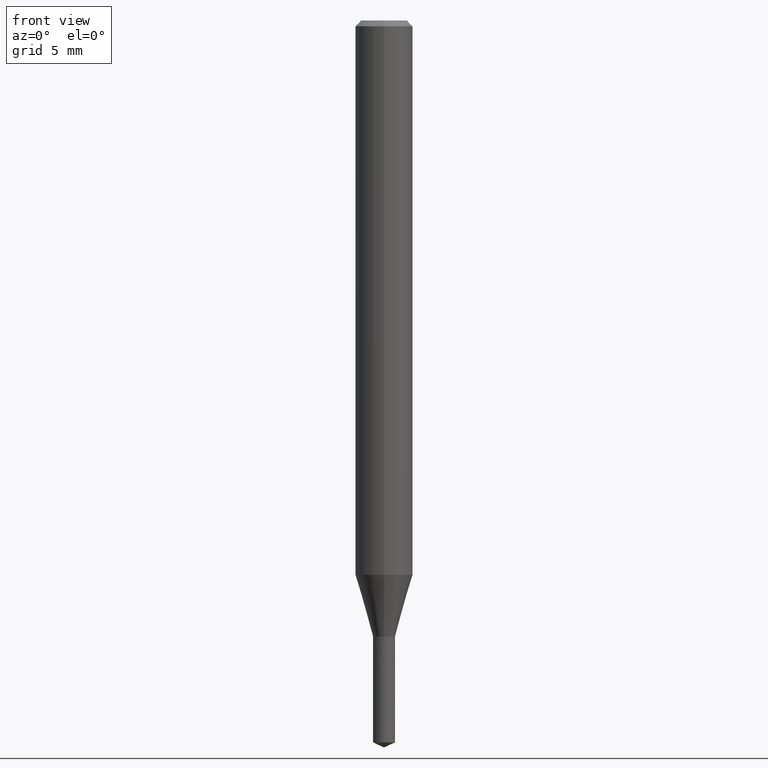
[diagram: clean part render]
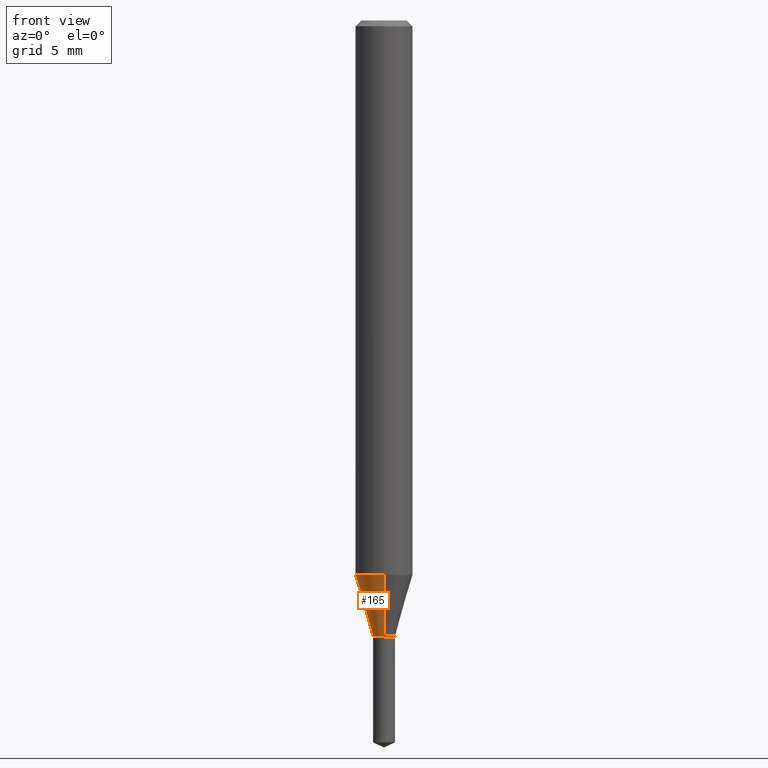
[diagram: same view with one face highlighted and labeled with its STEP entity id]
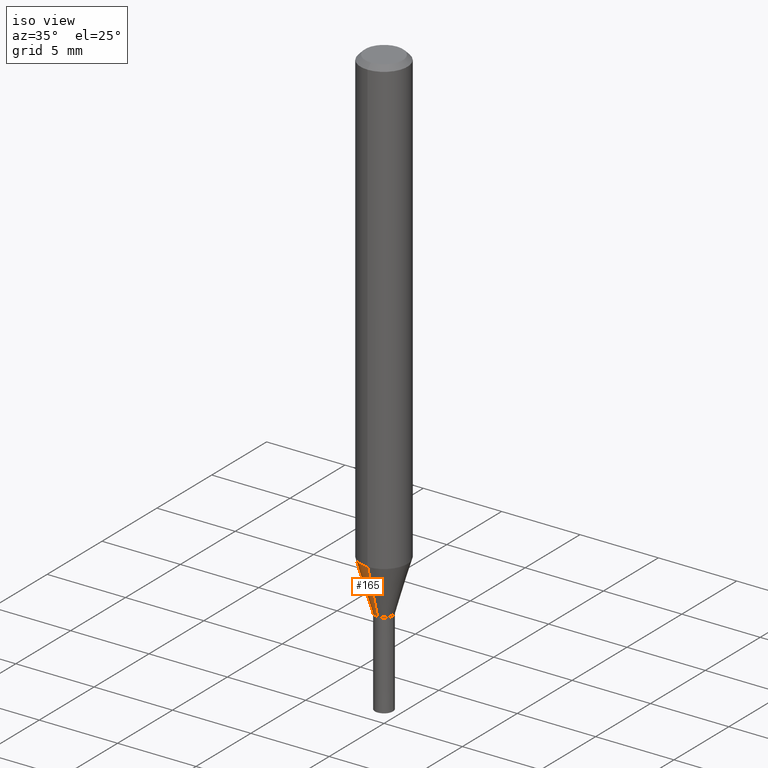
[diagram: same view with one face highlighted and labeled with its STEP entity id]
A machine part, front view. The second image highlights one B-rep face of the part: STEP entity #165.
A second angle (iso view) of the same face is appended — the face is thin or edge-on in the first view.
In plain terms, the highlighted conical surface has half-angle 16.003 deg.
Its self-contained STEP definition (entity closure, byte-faithful):
#103=EDGE_CURVE('',#161,#143,#240,.T.);
#129=VERTEX_POINT('',#268);
#137=EDGE_CURVE('',#143,#129,#277,.T.);
#143=VERTEX_POINT('',#284);
#161=VERTEX_POINT('',#303);
#165=ADVANCED_FACE('',(#308),#309,.T.);
#181=EDGE_CURVE('',#187,#161,#326,.T.);
#183=EDGE_CURVE('',#187,#129,#328,.T.);
#187=VERTEX_POINT('',#332);
#240=CIRCLE('',#384,1.5);
#268=CARTESIAN_POINT('',(0.0,0.575,-32.1991339745962));
#277=LINE('',#431,#432);
#284=CARTESIAN_POINT('',(0.0,1.5,-28.974));
#303=CARTESIAN_POINT('',(1.83690953073357E-016,-1.5,-28.974));
#308=FACE_OUTER_BOUND('',#472,.T.);
#309=CONICAL_SURFACE('',#473,1.0375,0.279312190951098);
#326=LINE('',#499,#500);
#328=CIRCLE('',#503,0.575);
#332=CARTESIAN_POINT('',(7.04148653447867E-017,-0.575,-32.1991339745962));
#384=AXIS2_PLACEMENT_3D('',#551,#552,#553);
#431=CARTESIAN_POINT('',(-1.27052909209072E-016,1.0375,-30.5865669872981));
#432=VECTOR('',#594,1.0);
#472=EDGE_LOOP('',(#632,#633,#634,#635));
#473=AXIS2_PLACEMENT_3D('',#636,#637,#638);
#499=CARTESIAN_POINT('',(1.27052909209072E-016,-1.0375,-30.5865669872981));
#500=VECTOR('',#661,1.0);
#503=AXIS2_PLACEMENT_3D('',#662,#663,#664);
#551=CARTESIAN_POINT('',(0.0,0.0,-28.974));
#552=DIRECTION('',(0.0,0.0,-1.0));
#553=DIRECTION('',(0.0,1.0,0.0));
#594=DIRECTION('',(3.3761731064943E-017,-0.275694560619926,-0.961245290882918));
#632=ORIENTED_EDGE('',*,*,#137,.T.);
#633=ORIENTED_EDGE('',*,*,#183,.F.);
#634=ORIENTED_EDGE('',*,*,#181,.T.);
#635=ORIENTED_EDGE('',*,*,#103,.T.);
#636=CARTESIAN_POINT('',(0.0,0.0,-30.5865669872981));
#637=DIRECTION('',(-0.0,-0.0,1.0));
#638=DIRECTION('',(0.0,1.0,0.0));
#661=DIRECTION('',(3.3761731064943E-017,-0.275694560619926,0.961245290882918));
#662=CARTESIAN_POINT('',(0.0,0.0,-32.1991339745962));
#663=DIRECTION('',(0.0,0.0,-1.0));
#664=DIRECTION('',(0.0,1.0,0.0));